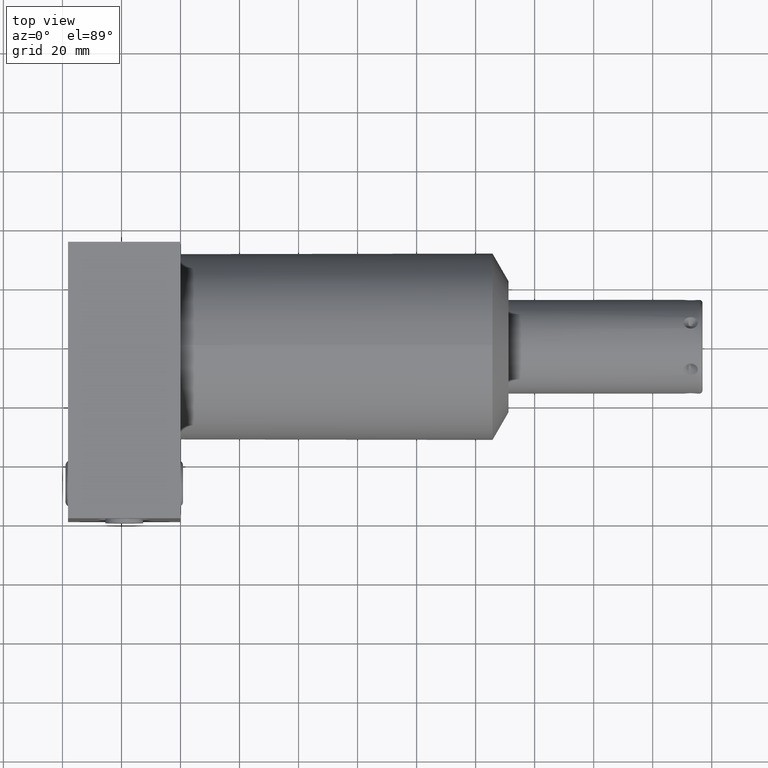
[diagram: clean part render]
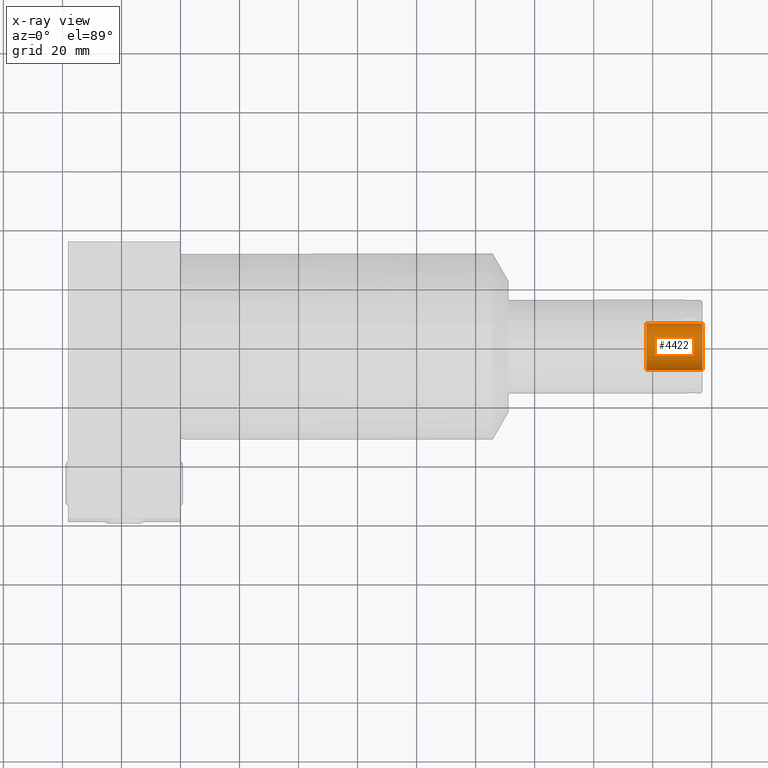
[diagram: x-ray — body ghosted, one internal face saturated and labeled with its STEP entity id]
A machine part, top view, then the same camera in x-ray: the body is ghosted and one INTERNAL B-rep face — a face not visible from any outside direction — is saturated and labeled: STEP entity #4422.
In plain terms, the highlighted cylindrical surface (edge-blend (fillet) strip) has radius 7.9375 mm, axis along (1, 0, 0).
Its self-contained STEP definition (entity closure, byte-faithful):
#4333=CARTESIAN_POINT('',(6.963E0,0.E0,0.E0));
#4334=DIRECTION('',(1.E0,0.E0,0.E0));
#4335=DIRECTION('',(0.E0,-1.E0,0.E0));
#4336=AXIS2_PLACEMENT_3D('',#4333,#4334,#4335);
#4341=DIRECTION('',(-1.E0,0.E0,0.E0));
#4342=VECTOR('',#4341,7.5E-1);
#4343=CARTESIAN_POINT('',(6.963E0,-3.125E-1,0.E0));
#4344=LINE('',#4343,#4342);
#4356=DIRECTION('',(-1.E0,0.E0,0.E0));
#4357=VECTOR('',#4356,7.5E-1);
#4358=CARTESIAN_POINT('',(6.963E0,3.125E-1,0.E0));
#4359=LINE('',#4358,#4357);
#4371=CARTESIAN_POINT('',(6.213E0,0.E0,0.E0));
#4372=DIRECTION('',(1.E0,0.E0,0.E0));
#4373=DIRECTION('',(0.E0,-1.E0,0.E0));
#4374=AXIS2_PLACEMENT_3D('',#4371,#4372,#4373);
#4395=CARTESIAN_POINT('',(6.963E0,3.125E-1,0.E0));
#4396=CARTESIAN_POINT('',(6.963E0,-3.125E-1,0.E0));
#4397=VERTEX_POINT('',#4395);
#4398=VERTEX_POINT('',#4396);
#4399=CARTESIAN_POINT('',(6.213E0,3.125E-1,0.E0));
#4400=CARTESIAN_POINT('',(6.213E0,-3.125E-1,0.E0));
#4401=VERTEX_POINT('',#4399);
#4402=VERTEX_POINT('',#4400);
#4407=CARTESIAN_POINT('',(6.963E0,0.E0,0.E0));
#4408=DIRECTION('',(1.E0,0.E0,0.E0));
#4409=DIRECTION('',(0.E0,1.E0,0.E0));
#4410=AXIS2_PLACEMENT_3D('',#4407,#4408,#4409);
#4411=CYLINDRICAL_SURFACE('',#4410,3.125E-1);
#4413=ORIENTED_EDGE('',*,*,#4412,.T.);
#4415=ORIENTED_EDGE('',*,*,#4414,.T.);
#4417=ORIENTED_EDGE('',*,*,#4416,.F.);
#4419=ORIENTED_EDGE('',*,*,#4418,.F.);
#4420=EDGE_LOOP('',(#4413,#4415,#4417,#4419));
#4421=FACE_OUTER_BOUND('',#4420,.F.);
#4337=CIRCLE('',#4336,3.125E-1);
#4375=CIRCLE('',#4374,3.125E-1);
#4412=EDGE_CURVE('',#4398,#4397,#4337,.T.);
#4414=EDGE_CURVE('',#4397,#4401,#4359,.T.);
#4416=EDGE_CURVE('',#4402,#4401,#4375,.T.);
#4418=EDGE_CURVE('',#4398,#4402,#4344,.T.);
#4422=ADVANCED_FACE('',(#4421),#4411,.T.);